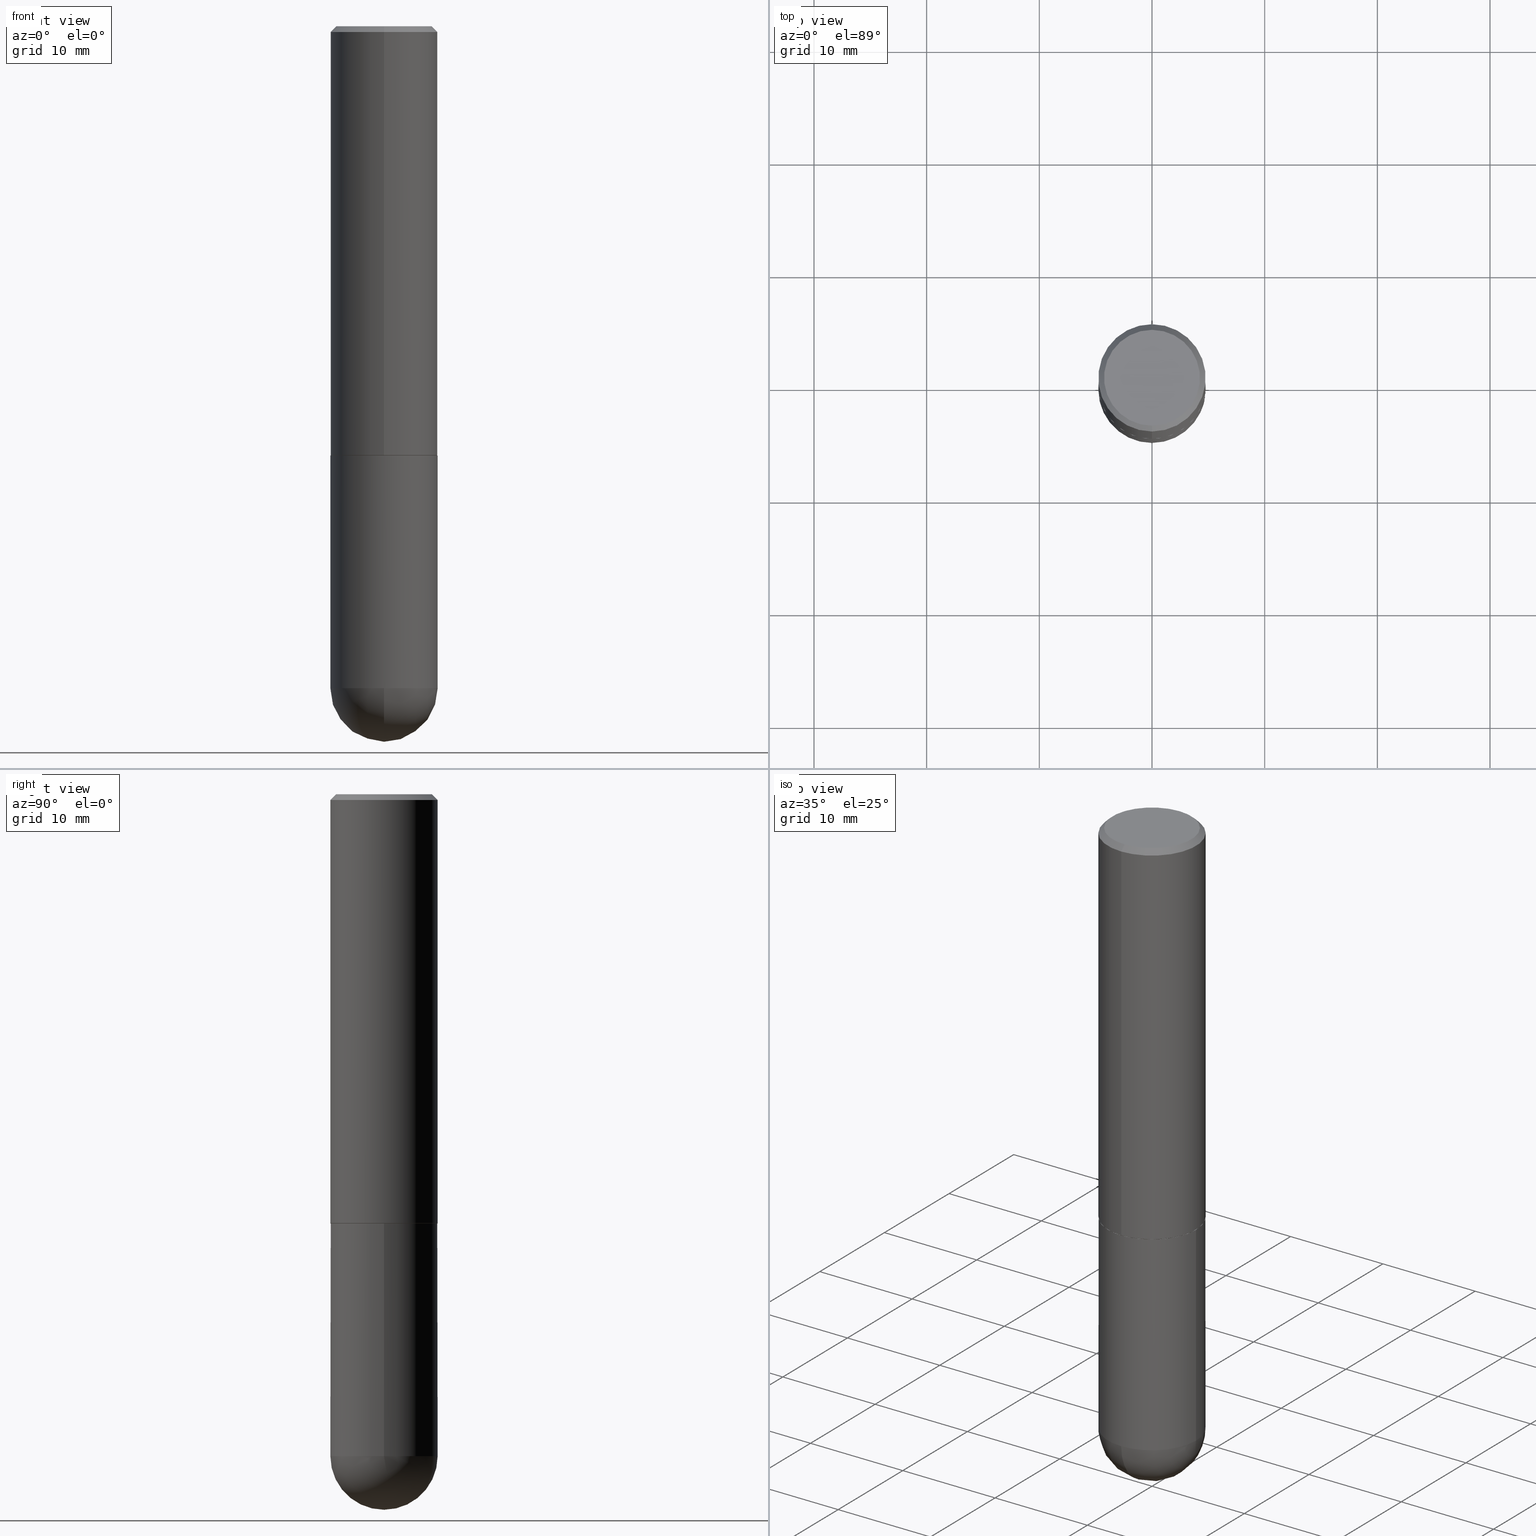
[diagram: canonical four-view strip — front | top / right | iso, engineering-drawing reading convention]
A machine part, canonical four-view strip (front | top / right | iso — engineering-drawing reading convention). The complete STEP part file that produces these views, byte-faithful:
ISO-10303-21;
HEADER;
FILE_DESCRIPTION (( 'STEP AP203' ),
    '1' );
FILE_NAME ('39048.STEP',
    '2024-02-21T19:14:20',
    ( '' ),
    ( '' ),
    'SwSTEP 2.0',
    'SolidWorks 2023',
    '' );
FILE_SCHEMA (( 'CONFIG_CONTROL_DESIGN' ));
ENDSEC;

DATA;
#1 = AXIS2_PLACEMENT_3D ( 'NONE', #310, #30, #337 ) ;
#2 = DIRECTION ( 'NONE',  ( -1.000000000000000000, 7.105427357601001070E-15, -4.926315508542082329E-29 ) ) ;
#3 = DIRECTION ( 'NONE',  ( -2.445571982926080285E-29, 3.491333583877658817E-15, 1.000000000000000000 ) ) ;
#4 = APPROVAL_PERSON_ORGANIZATION ( #368, #180, #400 ) ;
#5 = DIRECTION ( 'NONE',  ( 1.000000000000000000, -6.982962677686265922E-15, 4.876176775795935793E-29 ) ) ;
#6 = EDGE_CURVE ( 'NONE', #332, #64, #237, .T. ) ;
#7 = LINE ( 'NONE', #293, #288 ) ;
#8 = CIRCLE ( 'NONE', #225, 0.1875000000000003331 ) ;
#9 = DIRECTION ( 'NONE',  ( -2.445571982926080285E-29, 3.491333583877658817E-15, 1.000000000000000000 ) ) ;
#10 = DIRECTION ( 'NONE',  ( -2.445468806185136877E-29, 3.491481338843145188E-15, 1.000000000000000000 ) ) ;
#11 = CARTESIAN_POINT ( 'NONE',  ( 1.309305502066175205E-15, 0.1874999999999999167, -0.02000000000000069431 ) ) ;
#12 = EDGE_CURVE ( 'NONE', #307, #64, #72, .T. ) ;
#13 = CARTESIAN_POINT ( 'NONE',  ( 3.668357974389121549E-29, -5.237000375816488817E-15, -1.500000000000000444 ) ) ;
#14 = PERSON_AND_ORGANIZATION_ROLE ( 'design_supplier' ) ;
#15 = AXIS2_PLACEMENT_3D ( 'NONE', #91, #255, #218 ) ;
#16 = EDGE_CURVE ( 'NONE', #226, #86, #257, .T. ) ;
#17 = PERSON_AND_ORGANIZATION ( #393, #321 ) ;
#18 = ORIENTED_EDGE ( 'NONE', *, *, #206, .F. ) ;
#19 =( CONVERSION_BASED_UNIT ( 'INCH', #327 ) LENGTH_UNIT ( ) NAMED_UNIT ( #204 ) );
#20 = ORIENTED_EDGE ( 'NONE', *, *, #143, .F. ) ;
#21 = APPROVAL_STATUS ( 'not_yet_approved' ) ;
#22 = ORIENTED_EDGE ( 'NONE', *, *, #196, .T. ) ;
#23 = EDGE_LOOP ( 'NONE', ( #132, #314, #334, #197 ) ) ;
#24 = CARTESIAN_POINT ( 'NONE',  ( 3.668357974389121549E-29, -5.237000375816488817E-15, -1.500000000000000444 ) ) ;
#25 = ORIENTED_EDGE ( 'NONE', *, *, #127, .F. ) ;
#26 = FACE_OUTER_BOUND ( 'NONE', #361, .T. ) ;
#27 = PERSON_AND_ORGANIZATION ( #393, #321 ) ;
#28 = CARTESIAN_POINT ( 'NONE',  ( 5.655146614303128380E-29, -8.074050596074775072E-15, -2.312500000000000000 ) ) ;
#29 = DIRECTION ( 'NONE',  ( -6.982962677686266711E-15, -1.000000000000000000, 3.483106191921935949E-15 ) ) ;
#30 = DIRECTION ( 'NONE',  ( -2.445468806185136597E-29, 3.491481338843145583E-15, 1.000000000000000000 ) ) ;
#31 = AXIS2_PLACEMENT_3D ( 'NONE', #309, #228, #29 ) ;
#32 = CARTESIAN_POINT ( 'NONE',  ( 5.655146614303128380E-29, -8.074050596074775072E-15, -2.312500000000000000 ) ) ;
#33 = CARTESIAN_POINT ( 'NONE',  ( -1.302322539388451720E-15, -0.1865000000000051894, -1.499999999999999778 ) ) ;
#34 = ORIENTED_EDGE ( 'NONE', *, *, #127, .T. ) ;
#35 = ADVANCED_FACE ( 'NONE', ( #236 ), #50, .T. ) ;
#36 = SPHERICAL_SURFACE ( 'NONE', #311, 0.1875000000000003331 ) ;
#37 = DIRECTION ( 'NONE',  ( -2.445571982926080285E-29, 3.491333583877658817E-15, 1.000000000000000000 ) ) ;
#38 = EDGE_LOOP ( 'NONE', ( #181, #34, #79, #114 ) ) ;
#39 = CARTESIAN_POINT ( 'NONE',  ( 1.309305502066175205E-15, 0.1874999999999999167, -0.02000000000000069431 ) ) ;
#40 = CC_DESIGN_PERSON_AND_ORGANIZATION_ASSIGNMENT ( #17, #212, ( #215 ) ) ;
#41 = CYLINDRICAL_SURFACE ( 'NONE', #98, 0.1875000000000000555 ) ;
#42 = EDGE_CURVE ( 'NONE', #174, #226, #172, .T. ) ;
#43 = CIRCLE ( 'NONE', #195, 0.1875000000000000278 ) ;
#44 = DIRECTION ( 'NONE',  ( -2.445468806185136597E-29, 3.491481338843145583E-15, 1.000000000000000000 ) ) ;
#45 = LINE ( 'NONE', #169, #389 ) ;
#46 = PERSON_AND_ORGANIZATION ( #393, #321 ) ;
#47 = ADVANCED_BREP_SHAPE_REPRESENTATION ( '39048', ( #287, #138, #103 ), #155 ) ;
#48 = APPROVAL_ROLE ( '' ) ;
#49 = CIRCLE ( 'NONE', #305, 0.1874999999999999722 ) ;
#50 = SPHERICAL_SURFACE ( 'NONE', #177, 0.1875000000000003331 ) ;
#51 = ORIENTED_EDGE ( 'NONE', *, *, #42, .F. ) ;
#52 = DIRECTION ( 'NONE',  ( -2.445571982926080285E-29, 3.491333583877658817E-15, 1.000000000000000000 ) ) ;
#53 = DATE_TIME_ROLE ( 'creation_date' ) ;
#54 = VERTEX_POINT ( 'NONE', #245 ) ;
#55 = COORDINATED_UNIVERSAL_TIME_OFFSET ( 5, 0, .BEHIND. ) ;
#56 = AXIS2_PLACEMENT_3D ( 'NONE', #28, #350, #316 ) ;
#57 = DIRECTION ( 'NONE',  ( 6.982962677686266711E-15, 1.000000000000000000, -3.483106191921935949E-15 ) ) ;
#58 = AXIS2_PLACEMENT_3D ( 'NONE', #104, #115, #298 ) ;
#59 = VERTEX_POINT ( 'NONE', #365 ) ;
#60 = CARTESIAN_POINT ( 'NONE',  ( 1.328714915871423829E-15, 0.1864999999999947533, -1.500000000000000888 ) ) ;
#61 = DATE_TIME_ROLE ( 'classification_date' ) ;
#62 = ORIENTED_EDGE ( 'NONE', *, *, #333, .F. ) ;
#63 = DIRECTION ( 'NONE',  ( -6.982962677686265922E-15, -1.000000000000000000, 2.929595703661408850E-15 ) ) ;
#64 = VERTEX_POINT ( 'NONE', #82 ) ;
#65 = DIRECTION ( 'NONE',  ( 4.937700262164541731E-15, 0.7071067811865442421, -0.7071067811865507924 ) ) ;
#66 = ORIENTED_EDGE ( 'NONE', *, *, #388, .T. ) ;
#67 = DIRECTION ( 'NONE',  ( -2.445468806185136597E-29, 3.491481338843145583E-15, 1.000000000000000000 ) ) ;
#68 = CARTESIAN_POINT ( 'NONE',  ( 5.655146614303128380E-29, -8.074050596074775072E-15, -2.312500000000000000 ) ) ;
#69 = ORIENTED_EDGE ( 'NONE', *, *, #206, .T. ) ;
#70 = DIRECTION ( 'NONE',  ( 1.000000000000000000, -6.982962677686266711E-15, 0.000000000000000000 ) ) ;
#71 = VERTEX_POINT ( 'NONE', #213 ) ;
#72 = CIRCLE ( 'NONE', #56, 0.1875000000000000555 ) ;
#73 = DIRECTION ( 'NONE',  ( -2.445571982926080285E-29, 3.491333583877658817E-15, 1.000000000000000000 ) ) ;
#74 = ORIENTED_EDGE ( 'NONE', *, *, #12, .F. ) ;
#75 = ADVANCED_FACE ( 'NONE', ( #301 ), #153, .T. ) ;
#76 =( NAMED_UNIT ( * ) SI_UNIT ( $, .STERADIAN. ) SOLID_ANGLE_UNIT ( ) );
#77 = EDGE_LOOP ( 'NONE', ( #119, #329, #74, #18 ) ) ;
#78 = VECTOR ( 'NONE', #283, 39.37007874015748143 ) ;
#79 = ORIENTED_EDGE ( 'NONE', *, *, #233, .T. ) ;
#80 = CC_DESIGN_PERSON_AND_ORGANIZATION_ASSIGNMENT ( #170, #14, ( #313 ) ) ;
#81 = LOCAL_TIME ( 14, 14, 20.00000000000000000, #274 ) ;
#82 = CARTESIAN_POINT ( 'NONE',  ( 1.309305502066231017E-15, 0.1874999999999918954, -2.312500000000000444 ) ) ;
#83 = APPROVAL_DATE_TIME ( #271, #101 ) ;
#84 = ORIENTED_EDGE ( 'NONE', *, *, #16, .T. ) ;
#85 = FACE_OUTER_BOUND ( 'NONE', #108, .T. ) ;
#86 = VERTEX_POINT ( 'NONE', #149 ) ;
#87 = DIRECTION ( 'NONE',  ( 6.982962677686266711E-15, 1.000000000000000000, -3.483106191921935949E-15 ) ) ;
#88 = CC_DESIGN_PERSON_AND_ORGANIZATION_ASSIGNMENT ( #27, #191, ( #234 ) ) ;
#89 = PRODUCT ( '39048', '39048', '', ( #358 ) ) ;
#90 = DIRECTION ( 'NONE',  ( -2.445468806185136597E-29, 3.491481338843145583E-15, 1.000000000000000000 ) ) ;
#91 = CARTESIAN_POINT ( 'NONE',  ( 5.655146614303128380E-29, -8.074050596074775072E-15, -2.312500000000000000 ) ) ;
#92 = VECTOR ( 'NONE', #372, 39.37007874015748143 ) ;
#93 = CC_DESIGN_PERSON_AND_ORGANIZATION_ASSIGNMENT ( #246, #205, ( #89 ) ) ;
#94 = LOCAL_TIME ( 14, 14, 20.00000000000000000, #55 ) ;
#95 = LINE ( 'NONE', #224, #92 ) ;
#96 = DIRECTION ( 'NONE',  ( -2.445468806185136597E-29, 3.491481338843145583E-15, 1.000000000000000000 ) ) ;
#97 = DIRECTION ( 'NONE',  ( 6.982962677686265922E-15, 1.000000000000000000, 0.000000000000000000 ) ) ;
#98 = AXIS2_PLACEMENT_3D ( 'NONE', #164, #44, #390 ) ;
#99 = CARTESIAN_POINT ( 'NONE',  ( 5.324026836389243254E-29, -8.548232964214825368E-15, -2.312500000000000000 ) ) ;
#100 = FACE_OUTER_BOUND ( 'NONE', #378, .T. ) ;
#101 = APPROVAL ( #21, 'UNSPECIFIED' ) ;
#102 = CIRCLE ( 'NONE', #391, 0.1875000000000000555 ) ;
#103 = AXIS2_PLACEMENT_3D ( 'NONE', #107, #135, #356 ) ;
#104 = CARTESIAN_POINT ( 'NONE',  ( 3.668357974389121549E-29, -5.237000375816488817E-15, -1.500000000000000444 ) ) ;
#105 = EDGE_CURVE ( 'NONE', #303, #277, #117, .T. ) ;
#106 = ORIENTED_EDGE ( 'NONE', *, *, #261, .F. ) ;
#107 = CARTESIAN_POINT ( 'NONE',  ( 0.000000000000000000, 0.000000000000000000, 0.000000000000000000 ) ) ;
#108 = EDGE_LOOP ( 'NONE', ( #366, #214 ) ) ;
#109 = ADVANCED_FACE ( 'NONE', ( #381 ), #317, .F. ) ;
#110 = ORIENTED_EDGE ( 'NONE', *, *, #264, .F. ) ;
#111 = ADVANCED_FACE ( 'NONE', ( #26 ), #407, .F. ) ;
#112 = DIRECTION ( 'NONE',  ( 2.445571982926080285E-29, -3.491333583877658817E-15, -1.000000000000000000 ) ) ;
#113 = APPLICATION_PROTOCOL_DEFINITION ( 'international standard', 'config_control_design', 1994, #279 ) ;
#114 = ORIENTED_EDGE ( 'NONE', *, *, #196, .F. ) ;
#115 = DIRECTION ( 'NONE',  ( -2.445571982926080285E-29, 3.491333583877658817E-15, 1.000000000000000000 ) ) ;
#116 = APPROVAL_STATUS ( 'not_yet_approved' ) ;
#117 = LINE ( 'NONE', #39, #281 ) ;
#118 = CALENDAR_DATE ( 2024, 21, 2 ) ;
#119 = ORIENTED_EDGE ( 'NONE', *, *, #363, .F. ) ;
#120 = DATE_AND_TIME ( #178, #220 ) ;
#121 = DIRECTION ( 'NONE',  ( 1.000000000000000000, -6.982962677686270655E-15, 0.000000000000000000 ) ) ;
#122 = DIRECTION ( 'NONE',  ( 6.982962677686265922E-15, 1.000000000000000000, -3.491333583877658422E-15 ) ) ;
#123 = AXIS2_PLACEMENT_3D ( 'NONE', #344, #412, #87 ) ;
#124 = EDGE_CURVE ( 'NONE', #64, #71, #273, .T. ) ;
#125 = FACE_OUTER_BOUND ( 'NONE', #299, .T. ) ;
#126 = CARTESIAN_POINT ( 'NONE',  ( -0.1875000000000000278, -5.323368672619557593E-15, -1.500000000000000222 ) ) ;
#127 = EDGE_CURVE ( 'NONE', #226, #174, #266, .T. ) ;
#128 = ORIENTED_EDGE ( 'NONE', *, *, #130, .F. ) ;
#129 = DIRECTION ( 'NONE',  ( -6.982962677686265922E-15, -1.000000000000000000, 2.913971193241877611E-15 ) ) ;
#130 = EDGE_CURVE ( 'NONE', #277, #59, #49, .T. ) ;
#131 = AXIS2_PLACEMENT_3D ( 'NONE', #235, #96, #5 ) ;
#132 = ORIENTED_EDGE ( 'NONE', *, *, #6, .F. ) ;
#133 = VECTOR ( 'NONE', #353, 39.37007874015748143 ) ;
#134 =( LENGTH_UNIT ( ) NAMED_UNIT ( * ) SI_UNIT ( $, .METRE. ) );
#135 = DIRECTION ( 'NONE',  ( 0.000000000000000000, 0.000000000000000000, 1.000000000000000000 ) ) ;
#136 = CC_DESIGN_APPROVAL ( #216, ( #215 ) ) ;
#137 = ORIENTED_EDGE ( 'NONE', *, *, #143, .T. ) ;
#138 = MANIFOLD_SOLID_BREP ( 'Body-Move/Copy2[2]', #351 ) ;
#139 = ORIENTED_EDGE ( 'NONE', *, *, #130, .T. ) ;
#140 = DIRECTION ( 'NONE',  ( 6.982962677686266711E-15, 1.000000000000000000, -2.913971193241875639E-15 ) ) ;
#141 = DATE_AND_TIME ( #331, #94 ) ;
#142 = ORIENTED_EDGE ( 'NONE', *, *, #105, .F. ) ;
#143 = EDGE_CURVE ( 'NONE', #188, #243, #43, .T. ) ;
#144 = AXIS2_PLACEMENT_3D ( 'NONE', #336, #290, #162 ) ;
#145 = CARTESIAN_POINT ( 'NONE',  ( 4.891143965852170625E-31, -6.982667167755331735E-17, -0.02000000000000004205 ) ) ;
#146 = VERTEX_POINT ( 'NONE', #343 ) ;
#147 = CC_DESIGN_APPROVAL ( #101, ( #313 ) ) ;
#148 = CARTESIAN_POINT ( 'NONE',  ( 5.790569421510013204E-29, -9.191404651505909607E-15, -2.500000000000000000 ) ) ;
#149 = CARTESIAN_POINT ( 'NONE',  ( 1.332267629550206781E-15, 0.1874999999999949485, -1.499000000000000554 ) ) ;
#150 = ORIENTED_EDGE ( 'NONE', *, *, #223, .T. ) ;
#151 = EDGE_CURVE ( 'NONE', #54, #59, #95, .T. ) ;
#152 = CARTESIAN_POINT ( 'NONE',  ( 3.668357974389121549E-29, -5.237000375816488817E-15, -1.500000000000000444 ) ) ;
#153 = CONICAL_SURFACE ( 'NONE', #179, 0.1874999999999999722, 0.7853981633974471688 ) ;
#154 = LINE ( 'NONE', #33, #78 ) ;
#155 =( GEOMETRIC_REPRESENTATION_CONTEXT ( 3 ) GLOBAL_UNCERTAINTY_ASSIGNED_CONTEXT ( ( #200 ) ) GLOBAL_UNIT_ASSIGNED_CONTEXT ( ( #19, #240, #76 ) ) REPRESENTATION_CONTEXT ( 'NONE', 'WORKASPACE' ) );
#156 = CARTESIAN_POINT ( 'NONE',  ( 3.668203209277704895E-29, -5.237222008264718177E-15, -1.500000000000000222 ) ) ;
#157 = CARTESIAN_POINT ( 'NONE',  ( 5.324026836389243254E-29, -8.548232964214825368E-15, -2.312500000000000000 ) ) ;
#158 = CARTESIAN_POINT ( 'NONE',  ( 1.169646248512449595E-15, 0.1674999999999999822, -5.848107497778673142E-16 ) ) ;
#159 = CARTESIAN_POINT ( 'NONE',  ( 5.324026836389243254E-29, -8.548232964214825368E-15, -2.312500000000000000 ) ) ;
#160 = DIRECTION ( 'NONE',  ( -6.982962677686266711E-15, -1.000000000000000000, 3.491333583877658817E-15 ) ) ;
#161 = AXIS2_PLACEMENT_3D ( 'NONE', #258, #73, #203 ) ;
#162 = DIRECTION ( 'NONE',  ( -6.982962677686266711E-15, -1.000000000000000000, 3.491333583877659211E-15 ) ) ;
#163 = APPROVAL_PERSON_ORGANIZATION ( #326, #216, #48 ) ;
#164 = CARTESIAN_POINT ( 'NONE',  ( 0.000000000000000000, 0.000000000000000000, 0.000000000000000000 ) ) ;
#165 = CARTESIAN_POINT ( 'NONE',  ( 6.052535515876864583E-49, -8.640686375916787701E-35, -2.474895671905400626E-20 ) ) ;
#166 = AXIS2_PLACEMENT_3D ( 'NONE', #252, #37, #160 ) ;
#167 = CARTESIAN_POINT ( 'NONE',  ( 1.332267629550188243E-15, 0.1875000000000000833, -6.546250469770612993E-16 ) ) ;
#168 = CC_DESIGN_DATE_AND_TIME_ASSIGNMENT ( #141, #53, ( #215 ) ) ;
#169 = CARTESIAN_POINT ( 'NONE',  ( -1.309305502066175600E-15, -0.1875000000000000833, 6.546250469770612993E-16 ) ) ;
#170 = PERSON_AND_ORGANIZATION ( #393, #321 ) ;
#171 = APPROVAL_DATE_TIME ( #242, #216 ) ;
#172 = CIRCLE ( 'NONE', #408, 0.1864999999999999714 ) ;
#173 = CIRCLE ( 'NONE', #251, 0.1875000000000001943 ) ;
#174 = VERTEX_POINT ( 'NONE', #278 ) ;
#175 = ADVANCED_FACE ( 'NONE', ( #85 ), #229, .F. ) ;
#176 = ORIENTED_EDGE ( 'NONE', *, *, #183, .F. ) ;
#177 = AXIS2_PLACEMENT_3D ( 'NONE', #211, #330, #140 ) ;
#178 = CALENDAR_DATE ( 2024, 21, 2 ) ;
#179 = AXIS2_PLACEMENT_3D ( 'NONE', #145, #112, #57 ) ;
#180 = APPROVAL ( #116, 'UNSPECIFIED' ) ;
#181 = ORIENTED_EDGE ( 'NONE', *, *, #16, .F. ) ;
#182 = CARTESIAN_POINT ( 'NONE',  ( 3.668357974389121549E-29, -5.237000375816488817E-15, -1.500000000000000444 ) ) ;
#183 = EDGE_CURVE ( 'NONE', #146, #86, #256, .T. ) ;
#184 = CYLINDRICAL_SURFACE ( 'NONE', #166, 0.1875000000000000833 ) ;
#185 = DIRECTION ( 'NONE',  ( -1.000000000000000000, 6.982962677686265922E-15, -4.876176775795935793E-29 ) ) ;
#186 = AXIS2_PLACEMENT_3D ( 'NONE', #152, #308, #63 ) ;
#187 = SECURITY_CLASSIFICATION_LEVEL ( 'unclassified' ) ;
#188 = VERTEX_POINT ( 'NONE', #126 ) ;
#189 = ADVANCED_FACE ( 'NONE', ( #125 ), #184, .T. ) ;
#190 = DIRECTION ( 'NONE',  ( -2.445571982926080285E-29, 3.491333583877658817E-15, 1.000000000000000000 ) ) ;
#191 = PERSON_AND_ORGANIZATION_ROLE ( 'classification_officer' ) ;
#192 = ORIENTED_EDGE ( 'NONE', *, *, #124, .T. ) ;
#193 = CARTESIAN_POINT ( 'NONE',  ( 3.665912402406194899E-29, -5.233509042232610755E-15, -1.499000000000000110 ) ) ;
#194 = ADVANCED_FACE ( 'NONE', ( #286 ), #262, .T. ) ;
#195 = AXIS2_PLACEMENT_3D ( 'NONE', #156, #284, #70 ) ;
#196 = EDGE_CURVE ( 'NONE', #86, #146, #173, .T. ) ;
#197 = ORIENTED_EDGE ( 'NONE', *, *, #124, .F. ) ;
#198 = DIRECTION ( 'NONE',  ( -7.105427357600999492E-15, -1.000000000000000000, 0.000000000000000000 ) ) ;
#199 = DIRECTION ( 'NONE',  ( 5.024295867787719235E-15, 0.7071067811865017205, 0.7071067811865933139 ) ) ;
#200 = UNCERTAINTY_MEASURE_WITH_UNIT (LENGTH_MEASURE( 1.000000000000000082E-05 ), #19, 'distance_accuracy_value', 'NONE');
#201 = FACE_OUTER_BOUND ( 'NONE', #250, .T. ) ;
#202 = AXIS2_PLACEMENT_3D ( 'NONE', #193, #190, #312 ) ;
#203 = DIRECTION ( 'NONE',  ( -6.982962677686266711E-15, -1.000000000000000000, 3.491333583877658817E-15 ) ) ;
#204 = DIMENSIONAL_EXPONENTS ( 1.000000000000000000, 0.000000000000000000, 0.000000000000000000, 0.000000000000000000, 0.000000000000000000, 0.000000000000000000, 0.000000000000000000 ) ;
#205 = PERSON_AND_ORGANIZATION_ROLE ( 'design_owner' ) ;
#206 = EDGE_CURVE ( 'NONE', #230, #307, #322, .T. ) ;
#207 = FACE_OUTER_BOUND ( 'NONE', #38, .T. ) ;
#208 = APPLICATION_PROTOCOL_DEFINITION ( 'international standard', 'config_control_design', 1994, #347 ) ;
#209 = EDGE_LOOP ( 'NONE', ( #106, #275, #69, #66, #20 ) ) ;
#210 = CIRCLE ( 'NONE', #31, 0.1874999999999999722 ) ;
#211 = CARTESIAN_POINT ( 'NONE',  ( 5.324026836389243254E-29, -8.548232964214825368E-15, -2.312500000000000000 ) ) ;
#212 = PERSON_AND_ORGANIZATION_ROLE ( 'creator' ) ;
#213 = CARTESIAN_POINT ( 'NONE',  ( -0.1875000000000000555, -5.323368672619559170E-15, -2.312500000000000000 ) ) ;
#214 = ORIENTED_EDGE ( 'NONE', *, *, #264, .T. ) ;
#215 = PRODUCT_DEFINITION ( 'UNKNOWN', '', #313, #319 ) ;
#216 = APPROVAL ( #265, 'UNSPECIFIED' ) ;
#217 = EDGE_LOOP ( 'NONE', ( #280, #247, #272, #139 ) ) ;
#218 = DIRECTION ( 'NONE',  ( 1.000000000000000000, -6.982962677686270655E-15, 0.000000000000000000 ) ) ;
#219 = EDGE_LOOP ( 'NONE', ( #150, #137 ) ) ;
#220 = LOCAL_TIME ( 14, 14, 20.00000000000000000, #241 ) ;
#221 = DIRECTION ( 'NONE',  ( -6.982962677686265922E-15, -1.000000000000000000, 3.491333583877658422E-15 ) ) ;
#222 = CYLINDRICAL_SURFACE ( 'NONE', #131, 0.1875000000000000555 ) ;
#223 = EDGE_CURVE ( 'NONE', #243, #188, #282, .T. ) ;
#224 = CARTESIAN_POINT ( 'NONE',  ( -1.286343374582161379E-15, -0.1875000000000000555, -0.01999999999999938979 ) ) ;
#225 = AXIS2_PLACEMENT_3D ( 'NONE', #99, #2, #198 ) ;
#226 = VERTEX_POINT ( 'NONE', #60 ) ;
#227 = CC_DESIGN_SECURITY_CLASSIFICATION ( #234, ( #313 ) ) ;
#228 = DIRECTION ( 'NONE',  ( -2.445571982926080285E-29, 3.491333583877658817E-15, 1.000000000000000000 ) ) ;
#229 = PLANE ( 'NONE',  #352 ) ;
#230 = VERTEX_POINT ( 'NONE', #253 ) ;
#231 = FACE_OUTER_BOUND ( 'NONE', #359, .T. ) ;
#232 = LINE ( 'NONE', #167, #328 ) ;
#233 = EDGE_CURVE ( 'NONE', #174, #146, #154, .T. ) ;
#234 = SECURITY_CLASSIFICATION ( '', '', #187 ) ;
#235 = CARTESIAN_POINT ( 'NONE',  ( 0.000000000000000000, 0.000000000000000000, 0.000000000000000000 ) ) ;
#236 = FACE_OUTER_BOUND ( 'NONE', #77, .T. ) ;
#237 = CIRCLE ( 'NONE', #354, 0.1875000000000003331 ) ;
#238 = CONICAL_SURFACE ( 'NONE', #58, 0.1864999999999999714, 0.7853981633973801113 ) ;
#239 = CC_DESIGN_APPROVAL ( #180, ( #234 ) ) ;
#240 =( NAMED_UNIT ( * ) PLANE_ANGLE_UNIT ( ) SI_UNIT ( $, .RADIAN. ) );
#241 = COORDINATED_UNIVERSAL_TIME_OFFSET ( 5, 0, .BEHIND. ) ;
#242 = DATE_AND_TIME ( #394, #382 ) ;
#243 = VERTEX_POINT ( 'NONE', #410 ) ;
#244 = CONICAL_SURFACE ( 'NONE', #345, 0.1864999999999999714, 0.7853981633973801113 ) ;
#245 = CARTESIAN_POINT ( 'NONE',  ( -1.217738394604446442E-15, -0.1674999999999999822, 5.847736263427887505E-16 ) ) ;
#246 = PERSON_AND_ORGANIZATION ( #393, #321 ) ;
#247 = ORIENTED_EDGE ( 'NONE', *, *, #349, .F. ) ;
#248 = DIRECTION ( 'NONE',  ( -6.982962677686266711E-15, -1.000000000000000000, 3.483106191921935949E-15 ) ) ;
#249 = ADVANCED_FACE ( 'NONE', ( #376 ), #222, .T. ) ;
#250 = EDGE_LOOP ( 'NONE', ( #192, #383, #340, #405, #399 ) ) ;
#251 = AXIS2_PLACEMENT_3D ( 'NONE', #289, #3, #129 ) ;
#252 = CARTESIAN_POINT ( 'NONE',  ( 0.000000000000000000, 0.000000000000000000, 0.000000000000000000 ) ) ;
#253 = CARTESIAN_POINT ( 'NONE',  ( -1.332267629550134009E-15, -0.1875000000000084932, -2.312499999999999556 ) ) ;
#254 = CARTESIAN_POINT ( 'NONE',  ( 4.891143965852170625E-31, -6.982667167755331735E-17, -0.02000000000000004205 ) ) ;
#255 = DIRECTION ( 'NONE',  ( -2.445468806185136597E-29, 3.491481338843145583E-15, 1.000000000000000000 ) ) ;
#256 = CIRCLE ( 'NONE', #202, 0.1875000000000001943 ) ;
#257 = LINE ( 'NONE', #375, #379 ) ;
#258 = CARTESIAN_POINT ( 'NONE',  ( 0.000000000000000000, 0.000000000000000000, 0.000000000000000000 ) ) ;
#259 = ORIENTED_EDGE ( 'NONE', *, *, #151, .T. ) ;
#260 = LINE ( 'NONE', #387, #133 ) ;
#261 = EDGE_CURVE ( 'NONE', #71, #188, #260, .T. ) ;
#262 = CONICAL_SURFACE ( 'NONE', #123, 0.1874999999999999722, 0.7853981633974471688 ) ;
#263 = DIRECTION ( 'NONE',  ( -6.982962677686266711E-15, -1.000000000000000000, 3.491333583877659211E-15 ) ) ;
#264 = EDGE_CURVE ( 'NONE', #54, #303, #398, .T. ) ;
#265 = APPROVAL_STATUS ( 'not_yet_approved' ) ;
#266 = CIRCLE ( 'NONE', #186, 0.1864999999999999714 ) ;
#267 = ADVANCED_FACE ( 'NONE', ( #201 ), #41, .T. ) ;
#268 = ORIENTED_EDGE ( 'NONE', *, *, #276, .F. ) ;
#269 = ORIENTED_EDGE ( 'NONE', *, *, #333, .T. ) ;
#270 = DIRECTION ( 'NONE',  ( -2.445571982926080285E-29, 3.491333583877658817E-15, 1.000000000000000000 ) ) ;
#271 = DATE_AND_TIME ( #369, #81 ) ;
#272 = ORIENTED_EDGE ( 'NONE', *, *, #105, .T. ) ;
#273 = CIRCLE ( 'NONE', #335, 0.1875000000000000555 ) ;
#274 = COORDINATED_UNIVERSAL_TIME_OFFSET ( 5, 0, .BEHIND. ) ;
#275 = ORIENTED_EDGE ( 'NONE', *, *, #341, .T. ) ;
#276 = EDGE_CURVE ( 'NONE', #86, #277, #232, .T. ) ;
#277 = VERTEX_POINT ( 'NONE', #11 ) ;
#278 = CARTESIAN_POINT ( 'NONE',  ( -1.302322539388451720E-15, -0.1865000000000051894, -1.499999999999999778 ) ) ;
#279 = APPLICATION_CONTEXT ( 'configuration controlled 3d designs of mechanical parts and assemblies' ) ;
#280 = ORIENTED_EDGE ( 'NONE', *, *, #151, .F. ) ;
#281 = VECTOR ( 'NONE', #65, 39.37007874015748143 ) ;
#282 = CIRCLE ( 'NONE', #1, 0.1875000000000000278 ) ;
#283 = DIRECTION ( 'NONE',  ( -4.937700262164211199E-15, -0.7071067811864968355, 0.7071067811865981989 ) ) ;
#284 = DIRECTION ( 'NONE',  ( -2.445468806185136597E-29, 3.491481338843145583E-15, 1.000000000000000000 ) ) ;
#285 = DIRECTION ( 'NONE',  ( -1.000000000000000000, 6.982962677686266711E-15, -4.883557194083113462E-29 ) ) ;
#286 = FACE_OUTER_BOUND ( 'NONE', #403, .T. ) ;
#287 = MANIFOLD_SOLID_BREP ( 'Body-Move/Copy2[1]', #373 ) ;
#288 = VECTOR ( 'NONE', #10, 39.37007874015748143 ) ;
#289 = CARTESIAN_POINT ( 'NONE',  ( 3.665912402406194899E-29, -5.233509042232610755E-15, -1.499000000000000110 ) ) ;
#290 = DIRECTION ( 'NONE',  ( -2.445571982926080285E-29, 3.491333583877658817E-15, 1.000000000000000000 ) ) ;
#291 = ADVANCED_FACE ( 'NONE', ( #100 ), #355, .T. ) ;
#292 = EDGE_CURVE ( 'NONE', #146, #59, #45, .T. ) ;
#293 = CARTESIAN_POINT ( 'NONE',  ( 0.1875000000000000555, -1.309305502066175205E-15, 9.142831454617382414E-30 ) ) ;
#294 = DIRECTION ( 'NONE',  ( -2.445571982926080285E-29, 3.491333583877658422E-15, 1.000000000000000000 ) ) ;
#295 = CC_DESIGN_PERSON_AND_ORGANIZATION_ASSIGNMENT ( #46, #325, ( #313 ) ) ;
#296 = COORDINATED_UNIVERSAL_TIME_OFFSET ( 5, 0, .BEHIND. ) ;
#297 = ORIENTED_EDGE ( 'NONE', *, *, #292, .F. ) ;
#298 = DIRECTION ( 'NONE',  ( -6.982962677686265922E-15, -1.000000000000000000, 2.929595703661408850E-15 ) ) ;
#299 = EDGE_LOOP ( 'NONE', ( #318, #392, #62, #297 ) ) ;
#300 = CARTESIAN_POINT ( 'NONE',  ( 0.1875000000000000555, -7.964941804235924394E-15, -2.312500000000000000 ) ) ;
#301 = FACE_OUTER_BOUND ( 'NONE', #217, .T. ) ;
#302 = APPROVAL_ROLE ( '' ) ;
#303 = VERTEX_POINT ( 'NONE', #384 ) ;
#304 = ADVANCED_FACE ( 'NONE', ( #207 ), #244, .T. ) ;
#305 = AXIS2_PLACEMENT_3D ( 'NONE', #254, #411, #248 ) ;
#306 = COORDINATED_UNIVERSAL_TIME_OFFSET ( 5, 0, .BEHIND. ) ;
#307 = VERTEX_POINT ( 'NONE', #300 ) ;
#308 = DIRECTION ( 'NONE',  ( -2.445571982926080285E-29, 3.491333583877658817E-15, 1.000000000000000000 ) ) ;
#309 = CARTESIAN_POINT ( 'NONE',  ( 4.891143965852170625E-31, -6.982667167755331735E-17, -0.02000000000000004205 ) ) ;
#310 = CARTESIAN_POINT ( 'NONE',  ( 3.668203209277704895E-29, -5.237222008264718177E-15, -1.500000000000000222 ) ) ;
#311 = AXIS2_PLACEMENT_3D ( 'NONE', #157, #285, #406 ) ;
#312 = DIRECTION ( 'NONE',  ( -6.982962677686265922E-15, -1.000000000000000000, 2.913971193241877611E-15 ) ) ;
#313 = PRODUCT_DEFINITION_FORMATION_WITH_SPECIFIED_SOURCE ( 'ANY', '', #89, .NOT_KNOWN. ) ;
#314 = ORIENTED_EDGE ( 'NONE', *, *, #363, .T. ) ;
#315 = DIRECTION ( 'NONE',  ( 1.000000000000000000, -6.982962677686270655E-15, 0.000000000000000000 ) ) ;
#316 = DIRECTION ( 'NONE',  ( 1.000000000000000000, -6.982962677686270655E-15, 0.000000000000000000 ) ) ;
#317 = PLANE ( 'NONE',  #380 ) ;
#318 = ORIENTED_EDGE ( 'NONE', *, *, #183, .T. ) ;
#319 = DESIGN_CONTEXT ( 'detailed design', #347, 'design' ) ;
#320 = AXIS2_PLACEMENT_3D ( 'NONE', #182, #374, #221 ) ;
#321 = ORGANIZATION ( 'UNSPECIFIED', 'UNSPECIFIED', '' ) ;
#322 = CIRCLE ( 'NONE', #15, 0.1875000000000000555 ) ;
#323 = DIRECTION ( 'NONE',  ( -2.445571982926080285E-29, 3.491333583877658422E-15, 1.000000000000000000 ) ) ;
#324 = CC_DESIGN_DATE_AND_TIME_ASSIGNMENT ( #339, #61, ( #234 ) ) ;
#325 = PERSON_AND_ORGANIZATION_ROLE ( 'creator' ) ;
#326 = PERSON_AND_ORGANIZATION ( #393, #321 ) ;
#327 = LENGTH_MEASURE_WITH_UNIT ( LENGTH_MEASURE( 0.02539999999999999897 ), #134 );
#328 = VECTOR ( 'NONE', #323, 39.37007874015748143 ) ;
#329 = ORIENTED_EDGE ( 'NONE', *, *, #6, .T. ) ;
#330 = DIRECTION ( 'NONE',  ( -1.000000000000000000, 6.982962677686266711E-15, -4.883557194083113462E-29 ) ) ;
#331 = CALENDAR_DATE ( 2024, 21, 2 ) ;
#332 = VERTEX_POINT ( 'NONE', #148 ) ;
#333 = EDGE_CURVE ( 'NONE', #59, #277, #210, .T. ) ;
#334 = ORIENTED_EDGE ( 'NONE', *, *, #341, .F. ) ;
#335 = AXIS2_PLACEMENT_3D ( 'NONE', #68, #90, #315 ) ;
#336 = CARTESIAN_POINT ( 'NONE',  ( 6.052535515876864583E-49, -8.640686375916787701E-35, -2.474895671905400626E-20 ) ) ;
#337 = DIRECTION ( 'NONE',  ( 1.000000000000000000, -6.982962677686266711E-15, 0.000000000000000000 ) ) ;
#338 = ADVANCED_FACE ( 'NONE', ( #404 ), #36, .T. ) ;
#339 = DATE_AND_TIME ( #118, #401 ) ;
#340 = ORIENTED_EDGE ( 'NONE', *, *, #223, .F. ) ;
#341 = EDGE_CURVE ( 'NONE', #71, #230, #102, .T. ) ;
#342 = SHAPE_DEFINITION_REPRESENTATION ( #367, #47 ) ;
#343 = CARTESIAN_POINT ( 'NONE',  ( -1.309305502066139509E-15, -0.1875000000000054123, -1.498999999999999444 ) ) ;
#344 = CARTESIAN_POINT ( 'NONE',  ( 4.891143965852170625E-31, -6.982667167755331735E-17, -0.02000000000000004205 ) ) ;
#345 = AXIS2_PLACEMENT_3D ( 'NONE', #13, #52, #364 ) ;
#346 = DIRECTION ( 'NONE',  ( 2.438088387897960049E-29, -3.491481338843145188E-15, -1.000000000000000000 ) ) ;
#347 = APPLICATION_CONTEXT ( 'configuration controlled 3d designs of mechanical parts and assemblies' ) ;
#348 = CARTESIAN_POINT ( 'NONE',  ( 1.309305502066211690E-15, 0.1874999999999947820, -1.500000000000000666 ) ) ;
#349 = EDGE_CURVE ( 'NONE', #303, #54, #360, .T. ) ;
#350 = DIRECTION ( 'NONE',  ( -2.445468806185136597E-29, 3.491481338843145583E-15, 1.000000000000000000 ) ) ;
#351 = CLOSED_SHELL ( 'NONE', ( #402, #189, #194, #75, #291, #304, #111, #175 ) ) ;
#352 = AXIS2_PLACEMENT_3D ( 'NONE', #158, #377, #122 ) ;
#353 = DIRECTION ( 'NONE',  ( -2.445468806185136877E-29, 3.491481338843145188E-15, 1.000000000000000000 ) ) ;
#354 = AXIS2_PLACEMENT_3D ( 'NONE', #159, #385, #97 ) ;
#355 = CYLINDRICAL_SURFACE ( 'NONE', #161, 0.1875000000000000833 ) ;
#356 = DIRECTION ( 'NONE',  ( 1.000000000000000000, 0.000000000000000000, 0.000000000000000000 ) ) ;
#357 = ORIENTED_EDGE ( 'NONE', *, *, #292, .T. ) ;
#358 = MECHANICAL_CONTEXT ( 'NONE', #279, 'mechanical' ) ;
#359 = EDGE_LOOP ( 'NONE', ( #395, #84, #176, #370 ) ) ;
#360 = CIRCLE ( 'NONE', #144, 0.1674999999999999822 ) ;
#361 = EDGE_LOOP ( 'NONE', ( #51, #25 ) ) ;
#362 = APPROVAL_PERSON_ORGANIZATION ( #397, #101, #302 ) ;
#363 = EDGE_CURVE ( 'NONE', #332, #230, #8, .T. ) ;
#364 = DIRECTION ( 'NONE',  ( -6.982962677686265922E-15, -1.000000000000000000, 2.929595703661408850E-15 ) ) ;
#365 = CARTESIAN_POINT ( 'NONE',  ( -1.286343374582161379E-15, -0.1875000000000000555, -0.01999999999999938979 ) ) ;
#366 = ORIENTED_EDGE ( 'NONE', *, *, #349, .T. ) ;
#367 = PRODUCT_DEFINITION_SHAPE ( 'NONE', 'NONE',  #215 ) ;
#368 = PERSON_AND_ORGANIZATION ( #393, #321 ) ;
#369 = CALENDAR_DATE ( 2024, 21, 2 ) ;
#370 = ORIENTED_EDGE ( 'NONE', *, *, #233, .F. ) ;
#371 = APPROVAL_DATE_TIME ( #120, #180 ) ;
#372 = DIRECTION ( 'NONE',  ( -4.851104656540957964E-15, -0.7071067811865491270, -0.7071067811865459074 ) ) ;
#373 = CLOSED_SHELL ( 'NONE', ( #267, #338, #35, #109, #249 ) ) ;
#374 = DIRECTION ( 'NONE',  ( -2.445571982926080285E-29, 3.491333583877658422E-15, 1.000000000000000000 ) ) ;
#375 = CARTESIAN_POINT ( 'NONE',  ( 1.325162202192623128E-15, 0.1864999999999947533, -1.500000000000000888 ) ) ;
#376 = FACE_OUTER_BOUND ( 'NONE', #209, .T. ) ;
#377 = DIRECTION ( 'NONE',  ( 2.445571982926080285E-29, -3.491333583877658422E-15, -1.000000000000000000 ) ) ;
#378 = EDGE_LOOP ( 'NONE', ( #268, #22, #357, #128 ) ) ;
#379 = VECTOR ( 'NONE', #199, 39.37007874015748143 ) ;
#380 = AXIS2_PLACEMENT_3D ( 'NONE', #348, #346, #185 ) ;
#381 = FACE_OUTER_BOUND ( 'NONE', #219, .T. ) ;
#382 = LOCAL_TIME ( 14, 14, 20.00000000000000000, #296 ) ;
#383 = ORIENTED_EDGE ( 'NONE', *, *, #261, .T. ) ;
#384 = CARTESIAN_POINT ( 'NONE',  ( 1.239475875289312499E-15, 0.1674999999999999822, -5.848231242562269669E-16 ) ) ;
#385 = DIRECTION ( 'NONE',  ( 1.000000000000000000, -6.982962677686265922E-15, 4.883557194083112340E-29 ) ) ;
#386 = PRODUCT_RELATED_PRODUCT_CATEGORY ( 'detail', '', ( #89 ) ) ;
#387 = CARTESIAN_POINT ( 'NONE',  ( -0.1875000000000000555, 1.332267629550188243E-15, -9.223003294227950793E-30 ) ) ;
#388 = EDGE_CURVE ( 'NONE', #307, #243, #7, .T. ) ;
#389 = VECTOR ( 'NONE', #294, 39.37007874015748143 ) ;
#390 = DIRECTION ( 'NONE',  ( 1.000000000000000000, -6.982962677686265922E-15, 4.876176775795935793E-29 ) ) ;
#391 = AXIS2_PLACEMENT_3D ( 'NONE', #32, #67, #121 ) ;
#392 = ORIENTED_EDGE ( 'NONE', *, *, #276, .T. ) ;
#393 = PERSON ( 'UNSPECIFIED', 'UNSPECIFIED', 'UNSPECIFIED', ('UNSPECIFIED'), ('UNSPECIFIED'), ('UNSPECIFIED') ) ;
#394 = CALENDAR_DATE ( 2024, 21, 2 ) ;
#395 = ORIENTED_EDGE ( 'NONE', *, *, #42, .T. ) ;
#396 = DIRECTION ( 'NONE',  ( -6.982962677686265922E-15, -1.000000000000000000, 2.929595703661408850E-15 ) ) ;
#397 = PERSON_AND_ORGANIZATION ( #393, #321 ) ;
#398 = CIRCLE ( 'NONE', #409, 0.1674999999999999822 ) ;
#399 = ORIENTED_EDGE ( 'NONE', *, *, #12, .T. ) ;
#400 = APPROVAL_ROLE ( '' ) ;
#401 = LOCAL_TIME ( 14, 14, 20.00000000000000000, #306 ) ;
#402 = ADVANCED_FACE ( 'NONE', ( #231 ), #238, .T. ) ;
#403 = EDGE_LOOP ( 'NONE', ( #110, #259, #269, #142 ) ) ;
#404 = FACE_OUTER_BOUND ( 'NONE', #23, .T. ) ;
#405 = ORIENTED_EDGE ( 'NONE', *, *, #388, .F. ) ;
#406 = DIRECTION ( 'NONE',  ( 6.982962677686266711E-15, 1.000000000000000000, -2.913971193241875639E-15 ) ) ;
#407 = PLANE ( 'NONE',  #320 ) ;
#408 = AXIS2_PLACEMENT_3D ( 'NONE', #24, #270, #396 ) ;
#409 = AXIS2_PLACEMENT_3D ( 'NONE', #165, #9, #263 ) ;
#410 = CARTESIAN_POINT ( 'NONE',  ( 0.1875000000000000278, -6.546527510330893974E-15, -1.500000000000000222 ) ) ;
#411 = DIRECTION ( 'NONE',  ( -2.445571982926080285E-29, 3.491333583877658817E-15, 1.000000000000000000 ) ) ;
#412 = DIRECTION ( 'NONE',  ( 2.445571982926080285E-29, -3.491333583877658817E-15, -1.000000000000000000 ) ) ;
ENDSEC;
END-ISO-10303-21;
